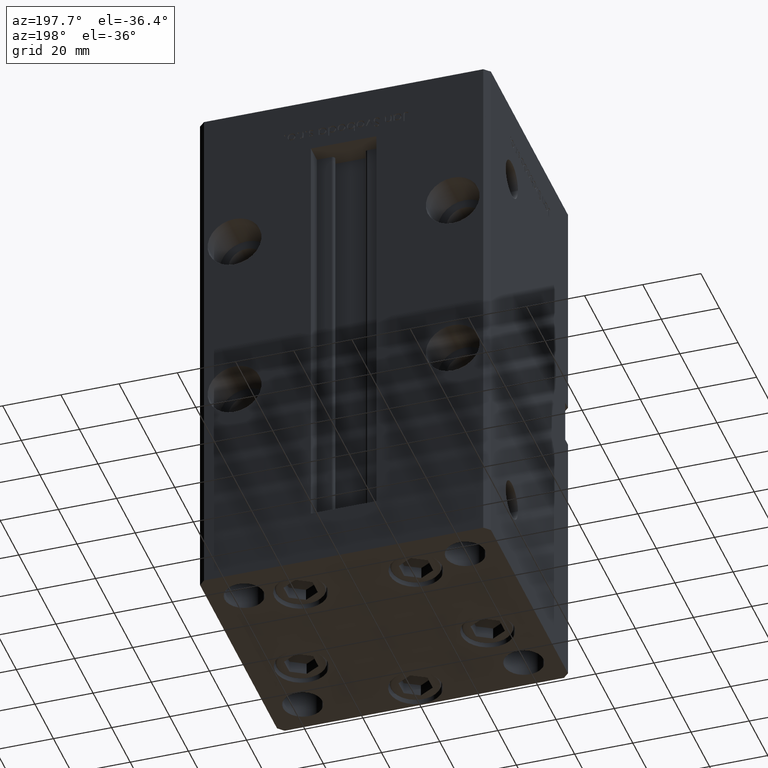
[diagram: clean part render]
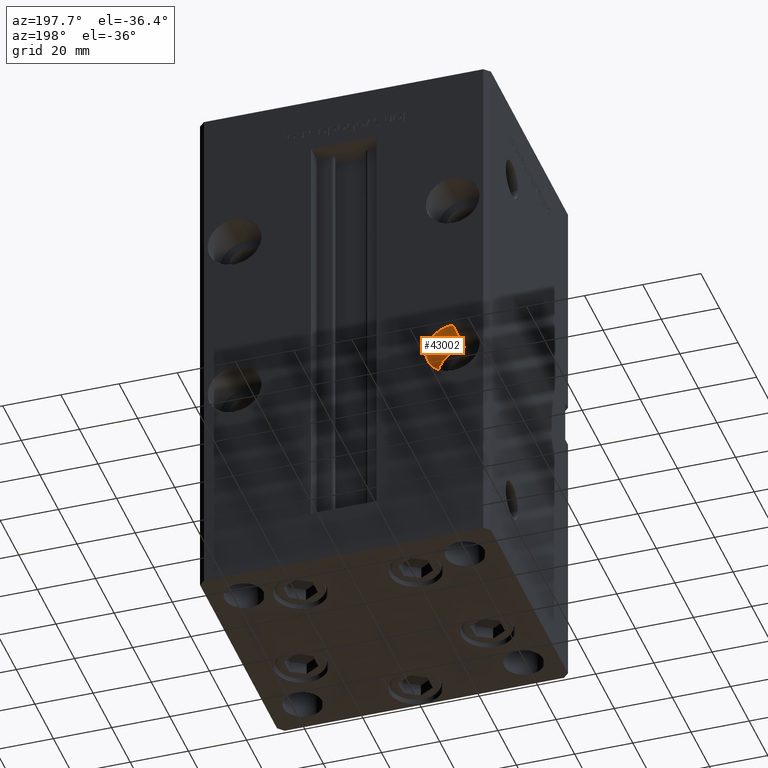
[diagram: same view with one face highlighted and labeled with its STEP entity id]
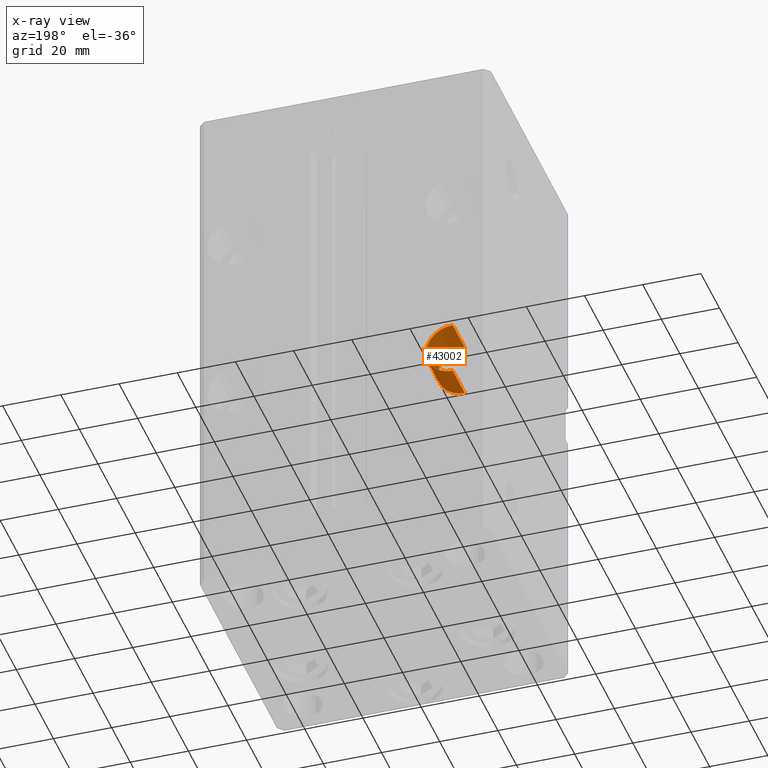
[diagram: x-ray of the same camera — body ghosted, the highlighted face saturated]
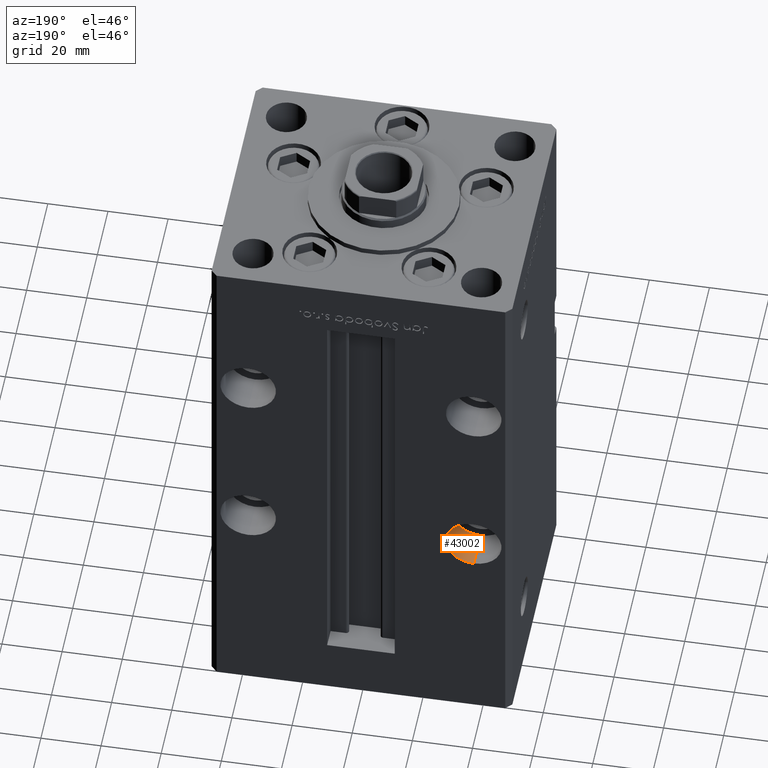
[diagram: same view with one face highlighted and labeled with its STEP entity id]
A machine part, auxiliary view. The second image highlights one B-rep face of the part: STEP entity #43002.
The next image is the same camera in x-ray: the body ghosted, the highlighted face saturated — about 0% of this face is hidden behind the body in this view.
A second angle (auxiliary view) of the same face is appended — the face is thin or edge-on in the first view.
In plain terms, the highlighted cylindrical surface (edge-blend (fillet) strip) has radius 9.25 mm, axis along (0, 1, 0).
Its self-contained STEP definition (entity closure, byte-faithful):
#1074 = ORIENTED_EDGE ( 'NONE', *, *, #19059, .T. ) ;
#1775 = CARTESIAN_POINT ( 'NONE',  ( -37.50000000000000000, 43.50000000000000000, 56.49999999999998579 ) ) ;
#1799 = CIRCLE ( 'NONE', #47240, 9.250000000000001776 ) ;
#2318 = CARTESIAN_POINT ( 'NONE',  ( -37.50000000000000000, 43.50000000000000000, 65.74999999999998579 ) ) ;
#7901 = DIRECTION ( 'NONE',  ( 0.000000000000000000, 1.000000000000000000, 0.000000000000000000 ) ) ;
#14478 = CARTESIAN_POINT ( 'NONE',  ( -37.50000000000000000, 43.50000000000000000, 47.24999999999998579 ) ) ;
#14853 = EDGE_CURVE ( 'NONE', #31255, #35938, #1799, .T. ) ;
#16973 = AXIS2_PLACEMENT_3D ( 'NONE', #52255, #36138, #36411 ) ;
#19059 = EDGE_CURVE ( 'NONE', #31255, #47477, #32161, .T. ) ;
#20555 = EDGE_LOOP ( 'NONE', ( #44346, #24496, #1074, #29841 ) ) ;
#23867 = DIRECTION ( 'NONE',  ( -0.000000000000000000, 1.000000000000000000, -0.000000000000000000 ) ) ;
#24142 = LINE ( 'NONE', #40514, #52616 ) ;
#24496 = ORIENTED_EDGE ( 'NONE', *, *, #14853, .F. ) ;
#24916 = EDGE_CURVE ( 'NONE', #35938, #26221, #24142, .T. ) ;
#25989 = DIRECTION ( 'NONE',  ( 0.000000000000000000, 1.000000000000000000, 0.000000000000000000 ) ) ;
#26221 = VERTEX_POINT ( 'NONE', #14478 ) ;
#27819 = FACE_OUTER_BOUND ( 'NONE', #20555, .T. ) ;
#29841 = ORIENTED_EDGE ( 'NONE', *, *, #49162, .T. ) ;
#31255 = VERTEX_POINT ( 'NONE', #52221 ) ;
#32161 = LINE ( 'NONE', #52837, #50811 ) ;
#32971 = DIRECTION ( 'NONE',  ( -0.000000000000000000, 1.000000000000000000, -0.000000000000000000 ) ) ;
#35938 = VERTEX_POINT ( 'NONE', #45596 ) ;
#36138 = DIRECTION ( 'NONE',  ( -0.000000000000000000, 1.000000000000000000, -0.000000000000000000 ) ) ;
#36411 = DIRECTION ( 'NONE',  ( 0.000000000000000000, 0.000000000000000000, 1.000000000000000000 ) ) ;
#38410 = CIRCLE ( 'NONE', #45270, 9.250000000000001776 ) ;
#40165 = CYLINDRICAL_SURFACE ( 'NONE', #16973, 9.250000000000001776 ) ;
#40514 = CARTESIAN_POINT ( 'NONE',  ( -37.50000000000000000, 30.50000000000000000, 47.24999999999998579 ) ) ;
#42355 = DIRECTION ( 'NONE',  ( 0.000000000000000000, 0.000000000000000000, 1.000000000000000000 ) ) ;
#43002 = ADVANCED_FACE ( 'NONE', ( #27819 ), #40165, .F. ) ;
#43644 = DIRECTION ( 'NONE',  ( 0.000000000000000000, 0.000000000000000000, 1.000000000000000000 ) ) ;
#44346 = ORIENTED_EDGE ( 'NONE', *, *, #24916, .F. ) ;
#45270 = AXIS2_PLACEMENT_3D ( 'NONE', #1775, #25989, #42355 ) ;
#45596 = CARTESIAN_POINT ( 'NONE',  ( -37.50000000000000000, 30.50000000000000000, 47.24999999999998579 ) ) ;
#47240 = AXIS2_PLACEMENT_3D ( 'NONE', #52508, #7901, #43644 ) ;
#47477 = VERTEX_POINT ( 'NONE', #2318 ) ;
#49162 = EDGE_CURVE ( 'NONE', #47477, #26221, #38410, .T. ) ;
#50811 = VECTOR ( 'NONE', #32971, 1000.000000000000000 ) ;
#52221 = CARTESIAN_POINT ( 'NONE',  ( -37.50000000000000000, 30.50000000000000000, 65.74999999999998579 ) ) ;
#52255 = CARTESIAN_POINT ( 'NONE',  ( -37.50000000000000000, 30.50000000000000000, 56.49999999999998579 ) ) ;
#52508 = CARTESIAN_POINT ( 'NONE',  ( -37.50000000000000000, 30.50000000000000000, 56.49999999999998579 ) ) ;
#52616 = VECTOR ( 'NONE', #23867, 1000.000000000000000 ) ;
#52837 = CARTESIAN_POINT ( 'NONE',  ( -37.50000000000000000, 30.50000000000000000, 65.74999999999998579 ) ) ;